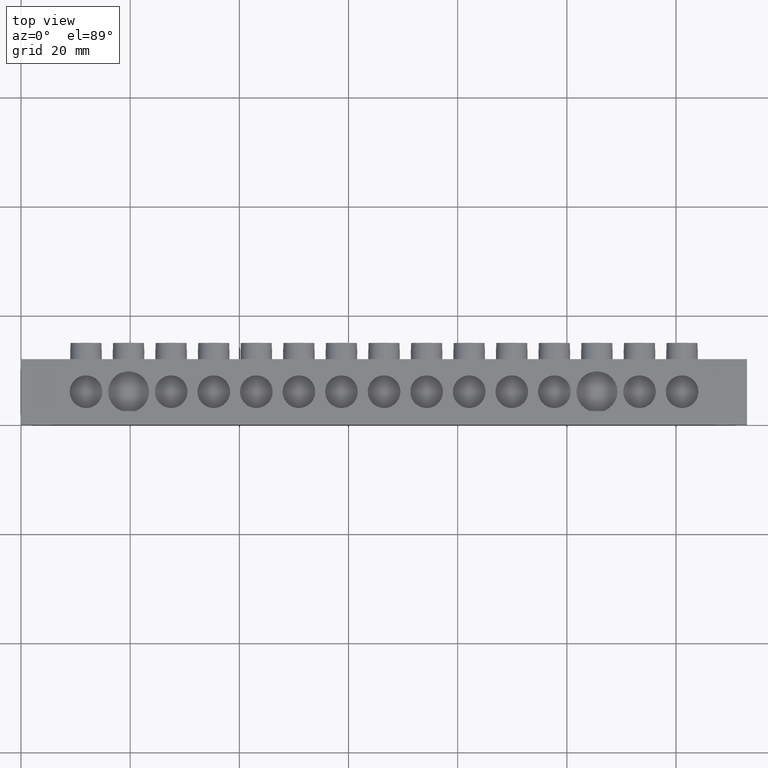
[diagram: clean part render]
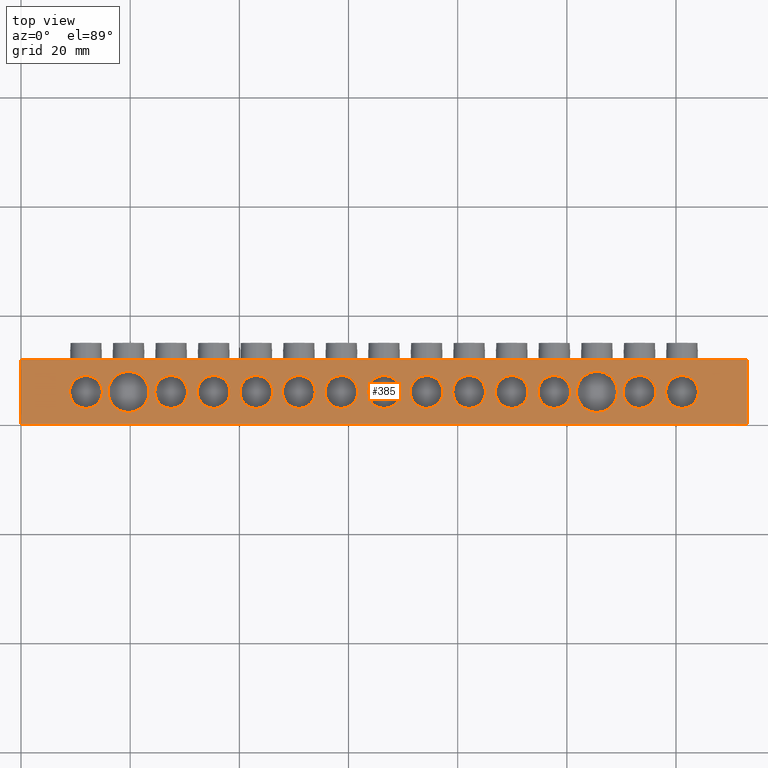
[diagram: same view with one face highlighted and labeled with its STEP entity id]
A machine part, top view. The second image highlights one B-rep face of the part: STEP entity #385.
In plain terms, the highlighted planar face has unit normal (0, 0, -1).
Its self-contained STEP definition (entity closure, byte-faithful):
#1 = DIRECTION ( 'NONE',  ( 0.0000000000000000000, 0.0000000000000000000, 1.000000000000000000 ) ) ;
#2 = DIRECTION ( 'NONE',  ( 1.000000000000000000, 0.0000000000000000000, 0.0000000000000000000 ) ) ;
#3 = DIRECTION ( 'NONE',  ( 0.0000000000000000000, 0.0000000000000000000, 1.000000000000000000 ) ) ;
#7 = DIRECTION ( 'NONE',  ( 1.000000000000000000, 0.0000000000000000000, 0.0000000000000000000 ) ) ;
#8 = CARTESIAN_POINT ( 'NONE',  ( 113.3000000000000100, 5.999999999999944900, 6.500000000000000000 ) ) ;
#9 = DIRECTION ( 'NONE',  ( 1.000000000000000000, 0.0000000000000000000, 0.0000000000000000000 ) ) ;
#143 = EDGE_CURVE ( 'NONE', #5442, #5523, #8555, .T. ) ;
#149 = EDGE_CURVE ( 'NONE', #5508, #5432, #8526, .T. ) ;
#171 = EDGE_CURVE ( 'NONE', #5478, #5435, #1101, .T. ) ;
#385 = ADVANCED_FACE ( 'NONE', ( #7093, #7083, #7107, #7117, #7109, #7098, #7104, #7108, #7101, #7081, #7110, #7111, #7115, #7120, #7122, #7155 ), #7154, .F. ) ;
#1101 = CIRCLE ( 'NONE', #1103, 3.000000000000009800 ) ;
#1103 = AXIS2_PLACEMENT_3D ( 'NONE', #1850, #1839, #1838 ) ;
#1189 = EDGE_LOOP ( 'NONE', ( #4659, #4681 ) ) ;
#1191 = EDGE_LOOP ( 'NONE', ( #4675, #4672 ) ) ;
#1207 = EDGE_LOOP ( 'NONE', ( #4696, #4648 ) ) ;
#1212 = EDGE_LOOP ( 'NONE', ( #4702, #4700 ) ) ;
#1223 = EDGE_LOOP ( 'NONE', ( #4693, #4643 ) ) ;
#1225 = EDGE_LOOP ( 'NONE', ( #4679, #4640 ) ) ;
#1235 = EDGE_LOOP ( 'NONE', ( #4642, #4647 ) ) ;
#1238 = EDGE_LOOP ( 'NONE', ( #4670, #4660 ) ) ;
#1240 = EDGE_LOOP ( 'NONE', ( #4653, #4673 ) ) ;
#1256 = EDGE_LOOP ( 'NONE', ( #4649, #4669 ) ) ;
#1259 = EDGE_LOOP ( 'NONE', ( #4678, #4655 ) ) ;
#1261 = EDGE_LOOP ( 'NONE', ( #4683, #4695 ) ) ;
#1275 = EDGE_LOOP ( 'NONE', ( #4646, #4620 ) ) ;
#1282 = EDGE_LOOP ( 'NONE', ( #4691, #4682, #4652, #4677 ) ) ;
#1283 = EDGE_LOOP ( 'NONE', ( #4624, #4625 ) ) ;
#1309 = EDGE_LOOP ( 'NONE', ( #4687, #4698 ) ) ;
#1540 = VERTEX_POINT ( 'NONE', #9136 ) ;
#1558 = VERTEX_POINT ( 'NONE', #9125 ) ;
#1566 = VERTEX_POINT ( 'NONE', #9166 ) ;
#1568 = VERTEX_POINT ( 'NONE', #9117 ) ;
#1571 = VERTEX_POINT ( 'NONE', #9133 ) ;
#1576 = VERTEX_POINT ( 'NONE', #9156 ) ;
#1604 = VERTEX_POINT ( 'NONE', #9114 ) ;
#1621 = VERTEX_POINT ( 'NONE', #9164 ) ;
#1623 = VERTEX_POINT ( 'NONE', #9216 ) ;
#1636 = VERTEX_POINT ( 'NONE', #9174 ) ;
#1686 = VERTEX_POINT ( 'NONE', #9214 ) ;
#1688 = VERTEX_POINT ( 'NONE', #9215 ) ;
#1699 = VERTEX_POINT ( 'NONE', #9220 ) ;
#1750 = DIRECTION ( 'NONE',  ( 0.0000000000000000000, 0.0000000000000000000, 1.000000000000000000 ) ) ;
#1756 = CARTESIAN_POINT ( 'NONE',  ( 43.10000000000001600, 5.999999999999841000, 6.500000000000000000 ) ) ;
#1759 = DIRECTION ( 'NONE',  ( 1.000000000000000000, 0.0000000000000000000, 0.0000000000000000000 ) ) ;
#1772 = CARTESIAN_POINT ( 'NONE',  ( 27.50000000000001100, 5.999999999999804600, 6.500000000000000000 ) ) ;
#1773 = DIRECTION ( 'NONE',  ( 1.000000000000000000, 0.0000000000000000000, 0.0000000000000000000 ) ) ;
#1781 = DIRECTION ( 'NONE',  ( 0.0000000000000000000, 0.0000000000000000000, 1.000000000000000000 ) ) ;
#1838 = DIRECTION ( 'NONE',  ( 1.000000000000000000, 0.0000000000000000000, 0.0000000000000000000 ) ) ;
#1839 = DIRECTION ( 'NONE',  ( 0.0000000000000000000, 0.0000000000000000000, 1.000000000000000000 ) ) ;
#1850 = CARTESIAN_POINT ( 'NONE',  ( 35.30000000000001100, 5.999999999999823300, 6.500000000000000000 ) ) ;
#2083 = AXIS2_PLACEMENT_3D ( 'NONE', #7126, #7143, #7131 ) ;
#2981 = CARTESIAN_POINT ( 'NONE',  ( 85.10000000000000900, 5.999999999999929800, 6.500000000000000000 ) ) ;
#2986 = CARTESIAN_POINT ( 'NONE',  ( 63.50000000000000000, 5.999999999999894300, 6.500000000000000000 ) ) ;
#2989 = CARTESIAN_POINT ( 'NONE',  ( 77.30000000000001100, 5.999999999999913000, 6.500000000000000000 ) ) ;
#2992 = CARTESIAN_POINT ( 'NONE',  ( 100.7000000000000200, 5.999999999999949400, 6.500000000000000000 ) ) ;
#3010 = CARTESIAN_POINT ( 'NONE',  ( 86.90000000000000600, 5.999999999999948500, 6.500000000000000000 ) ) ;
#3016 = CARTESIAN_POINT ( 'NONE',  ( 71.29999999999999700, 5.999999999999913000, 6.500000000000000000 ) ) ;
#3021 = CARTESIAN_POINT ( 'NONE',  ( 69.50000000000000000, 5.999999999999894300, 6.500000000000000000 ) ) ;
#3022 = CARTESIAN_POINT ( 'NONE',  ( 94.70000000000000300, 5.999999999999949400, 6.500000000000000000 ) ) ;
#3040 = CARTESIAN_POINT ( 'NONE',  ( 79.10000000000000900, 5.999999999999929800, 6.500000000000000000 ) ) ;
#3043 = CARTESIAN_POINT ( 'NONE',  ( 92.90000000000000600, 5.999999999999948500, 6.500000000000000000 ) ) ;
#3064 = CARTESIAN_POINT ( 'NONE',  ( 109.2500000000000100, 5.999999999999949400, 6.500000000000000000 ) ) ;
#3696 = CARTESIAN_POINT ( 'NONE',  ( 101.7500000000000000, 5.999999999999950300, 6.500000000000000000 ) ) ;
#3704 = CARTESIAN_POINT ( 'NONE',  ( 24.50000000000000000, 5.999999999999804600, 6.500000000000000000 ) ) ;
#3705 = CARTESIAN_POINT ( 'NONE',  ( 46.10000000000002300, 5.999999999999841000, 6.500000000000000000 ) ) ;
#3713 = CARTESIAN_POINT ( 'NONE',  ( 47.89999999999999900, 5.999999999999858800, 6.500000000000000000 ) ) ;
#3717 = CARTESIAN_POINT ( 'NONE',  ( 32.30000000000000400, 5.999999999999823300, 6.500000000000000000 ) ) ;
#3718 = CARTESIAN_POINT ( 'NONE',  ( 53.90000000000002000, 5.999999999999858800, 6.500000000000000000 ) ) ;
#3720 = CARTESIAN_POINT ( 'NONE',  ( 61.70000000000001700, 5.999999999999876500, 6.500000000000000000 ) ) ;
#3789 = CARTESIAN_POINT ( 'NONE',  ( 82.10000000000000900, 5.999999999999929800, 6.500000000000000000 ) ) ;
#3887 = DIRECTION ( 'NONE',  ( 0.0000000000000000000, 0.0000000000000000000, 1.000000000000000000 ) ) ;
#3943 = DIRECTION ( 'NONE',  ( 1.000000000000000000, 0.0000000000000000000, 0.0000000000000000000 ) ) ;
#4095 = CARTESIAN_POINT ( 'NONE',  ( 38.30000000000001800, 5.999999999999823300, 6.500000000000000000 ) ) ;
#4115 = CARTESIAN_POINT ( 'NONE',  ( 30.50000000000002100, 5.999999999999804600, 6.500000000000000000 ) ) ;
#4124 = CARTESIAN_POINT ( 'NONE',  ( 40.10000000000000100, 5.999999999999841000, 6.500000000000000000 ) ) ;
#4130 = EDGE_CURVE ( 'NONE', #5490, #5446, #6539, .T. ) ;
#4131 = EDGE_CURVE ( 'NONE', #1568, #1566, #6519, .T. ) ;
#4139 = EDGE_CURVE ( 'NONE', #1699, #1688, #9238, .T. ) ;
#4140 = EDGE_CURVE ( 'NONE', #5515, #1636, #6540, .T. ) ;
#4144 = EDGE_CURVE ( 'NONE', #1540, #1623, #6501, .T. ) ;
#4153 = EDGE_CURVE ( 'NONE', #1576, #1558, #6528, .T. ) ;
#4154 = EDGE_CURVE ( 'NONE', #1686, #1604, #9269, .T. ) ;
#4156 = EDGE_CURVE ( 'NONE', #5523, #5442, #6505, .T. ) ;
#4173 = EDGE_CURVE ( 'NONE', #5435, #5478, #6588, .T. ) ;
#4174 = EDGE_CURVE ( 'NONE', #9455, #9454, #6567, .T. ) ;
#4176 = EDGE_CURVE ( 'NONE', #5432, #5508, #6585, .T. ) ;
#4177 = EDGE_CURVE ( 'NONE', #9442, #9452, #6575, .T. ) ;
#4178 = EDGE_CURVE ( 'NONE', #1688, #1686, #9347, .T. ) ;
#4179 = EDGE_CURVE ( 'NONE', #9487, #5503, #6591, .T. ) ;
#4182 = EDGE_CURVE ( 'NONE', #9439, #9450, #6581, .T. ) ;
#4189 = EDGE_CURVE ( 'NONE', #1604, #1699, #8507, .T. ) ;
#4190 = EDGE_CURVE ( 'NONE', #1621, #1571, #6606, .T. ) ;
#4194 = EDGE_CURVE ( 'NONE', #9444, #9449, #6619, .T. ) ;
#4198 = EDGE_CURVE ( 'NONE', #9453, #9467, #6630, .T. ) ;
#4620 = ORIENTED_EDGE ( 'NONE', *, *, #5917, .F. ) ;
#4624 = ORIENTED_EDGE ( 'NONE', *, *, #4140, .F. ) ;
#4625 = ORIENTED_EDGE ( 'NONE', *, *, #5979, .F. ) ;
#4640 = ORIENTED_EDGE ( 'NONE', *, *, #5976, .F. ) ;
#4642 = ORIENTED_EDGE ( 'NONE', *, *, #4198, .F. ) ;
#4643 = ORIENTED_EDGE ( 'NONE', *, *, #5980, .F. ) ;
#4646 = ORIENTED_EDGE ( 'NONE', *, *, #4130, .F. ) ;
#4647 = ORIENTED_EDGE ( 'NONE', *, *, #5939, .F. ) ;
#4648 = ORIENTED_EDGE ( 'NONE', *, *, #5934, .F. ) ;
#4649 = ORIENTED_EDGE ( 'NONE', *, *, #4173, .F. ) ;
#4652 = ORIENTED_EDGE ( 'NONE', *, *, #4139, .T. ) ;
#4653 = ORIENTED_EDGE ( 'NONE', *, *, #4179, .F. ) ;
#4655 = ORIENTED_EDGE ( 'NONE', *, *, #5952, .F. ) ;
#4659 = ORIENTED_EDGE ( 'NONE', *, *, #4131, .F. ) ;
#4660 = ORIENTED_EDGE ( 'NONE', *, *, #143, .F. ) ;
#4669 = ORIENTED_EDGE ( 'NONE', *, *, #171, .F. ) ;
#4670 = ORIENTED_EDGE ( 'NONE', *, *, #4156, .F. ) ;
#4672 = ORIENTED_EDGE ( 'NONE', *, *, #149, .F. ) ;
#4673 = ORIENTED_EDGE ( 'NONE', *, *, #5962, .F. ) ;
#4675 = ORIENTED_EDGE ( 'NONE', *, *, #4176, .F. ) ;
#4677 = ORIENTED_EDGE ( 'NONE', *, *, #4178, .T. ) ;
#4678 = ORIENTED_EDGE ( 'NONE', *, *, #4174, .F. ) ;
#4679 = ORIENTED_EDGE ( 'NONE', *, *, #4153, .F. ) ;
#4681 = ORIENTED_EDGE ( 'NONE', *, *, #5958, .F. ) ;
#4682 = ORIENTED_EDGE ( 'NONE', *, *, #4189, .T. ) ;
#4683 = ORIENTED_EDGE ( 'NONE', *, *, #4190, .F. ) ;
#4687 = ORIENTED_EDGE ( 'NONE', *, *, #4177, .F. ) ;
#4691 = ORIENTED_EDGE ( 'NONE', *, *, #4154, .T. ) ;
#4693 = ORIENTED_EDGE ( 'NONE', *, *, #4194, .F. ) ;
#4695 = ORIENTED_EDGE ( 'NONE', *, *, #5978, .F. ) ;
#4696 = ORIENTED_EDGE ( 'NONE', *, *, #4144, .F. ) ;
#4698 = ORIENTED_EDGE ( 'NONE', *, *, #5963, .F. ) ;
#4700 = ORIENTED_EDGE ( 'NONE', *, *, #5876, .F. ) ;
#4702 = ORIENTED_EDGE ( 'NONE', *, *, #4182, .F. ) ;
#5432 = VERTEX_POINT ( 'NONE', #4115 ) ;
#5435 = VERTEX_POINT ( 'NONE', #4095 ) ;
#5442 = VERTEX_POINT ( 'NONE', #4124 ) ;
#5446 = VERTEX_POINT ( 'NONE', #3713 ) ;
#5478 = VERTEX_POINT ( 'NONE', #3717 ) ;
#5490 = VERTEX_POINT ( 'NONE', #3718 ) ;
#5503 = VERTEX_POINT ( 'NONE', #3696 ) ;
#5508 = VERTEX_POINT ( 'NONE', #3704 ) ;
#5515 = VERTEX_POINT ( 'NONE', #3720 ) ;
#5523 = VERTEX_POINT ( 'NONE', #3705 ) ;
#5876 = EDGE_CURVE ( 'NONE', #9450, #9439, #6844, .T. ) ;
#5917 = EDGE_CURVE ( 'NONE', #5446, #5490, #6326, .T. ) ;
#5934 = EDGE_CURVE ( 'NONE', #1623, #1540, #6368, .T. ) ;
#5939 = EDGE_CURVE ( 'NONE', #9467, #9453, #6319, .T. ) ;
#5952 = EDGE_CURVE ( 'NONE', #9454, #9455, #6377, .T. ) ;
#5958 = EDGE_CURVE ( 'NONE', #1566, #1568, #6374, .T. ) ;
#5962 = EDGE_CURVE ( 'NONE', #5503, #9487, #6389, .T. ) ;
#5963 = EDGE_CURVE ( 'NONE', #9452, #9442, #6388, .T. ) ;
#5976 = EDGE_CURVE ( 'NONE', #1558, #1576, #6382, .T. ) ;
#5978 = EDGE_CURVE ( 'NONE', #1571, #1621, #6437, .T. ) ;
#5979 = EDGE_CURVE ( 'NONE', #1636, #5515, #6402, .T. ) ;
#5980 = EDGE_CURVE ( 'NONE', #9449, #9444, #6383, .T. ) ;
#6319 = CIRCLE ( 'NONE', #6360, 3.000000000000002700 ) ;
#6326 = CIRCLE ( 'NONE', #6356, 3.000000000000009800 ) ;
#6328 = AXIS2_PLACEMENT_3D ( 'NONE', #9878, #9877, #9880 ) ;
#6350 = AXIS2_PLACEMENT_3D ( 'NONE', #9870, #9855, #9860 ) ;
#6353 = AXIS2_PLACEMENT_3D ( 'NONE', #9782, #9785, #9778 ) ;
#6356 = AXIS2_PLACEMENT_3D ( 'NONE', #9704, #9717, #9705 ) ;
#6360 = AXIS2_PLACEMENT_3D ( 'NONE', #9826, #9814, #9817 ) ;
#6368 = CIRCLE ( 'NONE', #6353, 3.750000000000000000 ) ;
#6374 = CIRCLE ( 'NONE', #6328, 2.999999999999999100 ) ;
#6377 = CIRCLE ( 'NONE', #6350, 3.000000000000002700 ) ;
#6382 = CIRCLE ( 'NONE', #6417, 3.000000000000002700 ) ;
#6383 = CIRCLE ( 'NONE', #6386, 3.000000000000002700 ) ;
#6386 = AXIS2_PLACEMENT_3D ( 'NONE', #10036, #3, #7 ) ;
#6388 = CIRCLE ( 'NONE', #6418, 3.000000000000002700 ) ;
#6389 = CIRCLE ( 'NONE', #6436, 3.750000000000003600 ) ;
#6397 = AXIS2_PLACEMENT_3D ( 'NONE', #10023, #10043, #10044 ) ;
#6402 = CIRCLE ( 'NONE', #6434, 3.000000000000009800 ) ;
#6417 = AXIS2_PLACEMENT_3D ( 'NONE', #8, #10022, #9 ) ;
#6418 = AXIS2_PLACEMENT_3D ( 'NONE', #9905, #9891, #9884 ) ;
#6434 = AXIS2_PLACEMENT_3D ( 'NONE', #10037, #1, #2 ) ;
#6436 = AXIS2_PLACEMENT_3D ( 'NONE', #9889, #9896, #9890 ) ;
#6437 = CIRCLE ( 'NONE', #6397, 3.000000000000002700 ) ;
#6501 = CIRCLE ( 'NONE', #6543, 3.750000000000000000 ) ;
#6505 = CIRCLE ( 'NONE', #6507, 3.000000000000009800 ) ;
#6507 = AXIS2_PLACEMENT_3D ( 'NONE', #9323, #9317, #9342 ) ;
#6512 = VECTOR ( 'NONE', #9312, 1000.000000000000000 ) ;
#6519 = CIRCLE ( 'NONE', #6544, 2.999999999999999100 ) ;
#6528 = CIRCLE ( 'NONE', #6534, 3.000000000000002700 ) ;
#6534 = AXIS2_PLACEMENT_3D ( 'NONE', #9310, #9333, #9326 ) ;
#6538 = AXIS2_PLACEMENT_3D ( 'NONE', #9235, #9280, #9284 ) ;
#6539 = CIRCLE ( 'NONE', #6553, 3.000000000000009800 ) ;
#6540 = CIRCLE ( 'NONE', #6538, 3.000000000000009800 ) ;
#6543 = AXIS2_PLACEMENT_3D ( 'NONE', #9278, #9274, #9289 ) ;
#6544 = AXIS2_PLACEMENT_3D ( 'NONE', #9264, #9241, #9230 ) ;
#6547 = VECTOR ( 'NONE', #9255, 1000.000000000000000 ) ;
#6553 = AXIS2_PLACEMENT_3D ( 'NONE', #9248, #9236, #9267 ) ;
#6565 = AXIS2_PLACEMENT_3D ( 'NONE', #9377, #9376, #9382 ) ;
#6567 = CIRCLE ( 'NONE', #6624, 3.000000000000002700 ) ;
#6569 = AXIS2_PLACEMENT_3D ( 'NONE', #9371, #9349, #9384 ) ;
#6573 = AXIS2_PLACEMENT_3D ( 'NONE', #7998, #8019, #7985 ) ;
#6575 = CIRCLE ( 'NONE', #6602, 3.000000000000002700 ) ;
#6581 = CIRCLE ( 'NONE', #6594, 3.000000000000002700 ) ;
#6585 = CIRCLE ( 'NONE', #6569, 3.000000000000009800 ) ;
#6588 = CIRCLE ( 'NONE', #6565, 3.000000000000009800 ) ;
#6590 = AXIS2_PLACEMENT_3D ( 'NONE', #8891, #8944, #8970 ) ;
#6591 = CIRCLE ( 'NONE', #6590, 3.750000000000003600 ) ;
#6594 = AXIS2_PLACEMENT_3D ( 'NONE', #8486, #8493, #8500 ) ;
#6602 = AXIS2_PLACEMENT_3D ( 'NONE', #9351, #9361, #9352 ) ;
#6606 = CIRCLE ( 'NONE', #6613, 3.000000000000002700 ) ;
#6607 = VECTOR ( 'NONE', #7997, 1000.000000000000000 ) ;
#6613 = AXIS2_PLACEMENT_3D ( 'NONE', #7996, #8000, #8007 ) ;
#6616 = VECTOR ( 'NONE', #9360, 1000.000000000000000 ) ;
#6619 = CIRCLE ( 'NONE', #6573, 3.000000000000002700 ) ;
#6624 = AXIS2_PLACEMENT_3D ( 'NONE', #9378, #9365, #9366 ) ;
#6630 = CIRCLE ( 'NONE', #6667, 3.000000000000002700 ) ;
#6667 = AXIS2_PLACEMENT_3D ( 'NONE', #7993, #7999, #8002 ) ;
#6844 = CIRCLE ( 'NONE', #6857, 3.000000000000002700 ) ;
#6857 = AXIS2_PLACEMENT_3D ( 'NONE', #3789, #3887, #3943 ) ;
#7081 = FACE_BOUND ( 'NONE', #1259, .T. ) ;
#7083 = FACE_BOUND ( 'NONE', #1256, .T. ) ;
#7093 = FACE_BOUND ( 'NONE', #1191, .T. ) ;
#7098 = FACE_BOUND ( 'NONE', #1235, .T. ) ;
#7101 = FACE_BOUND ( 'NONE', #1309, .T. ) ;
#7104 = FACE_BOUND ( 'NONE', #1223, .T. ) ;
#7107 = FACE_BOUND ( 'NONE', #1238, .T. ) ;
#7108 = FACE_BOUND ( 'NONE', #1212, .T. ) ;
#7109 = FACE_BOUND ( 'NONE', #1283, .T. ) ;
#7110 = FACE_BOUND ( 'NONE', #1240, .T. ) ;
#7111 = FACE_BOUND ( 'NONE', #1225, .T. ) ;
#7115 = FACE_BOUND ( 'NONE', #1261, .T. ) ;
#7117 = FACE_BOUND ( 'NONE', #1275, .T. ) ;
#7120 = FACE_BOUND ( 'NONE', #1207, .T. ) ;
#7122 = FACE_BOUND ( 'NONE', #1189, .T. ) ;
#7126 = CARTESIAN_POINT ( 'NONE',  ( 0.0000000000000000000, 12.00000000000000000, 6.500000000000000000 ) ) ;
#7131 = DIRECTION ( 'NONE',  ( -1.000000000000000000, 0.0000000000000000000, -0.0000000000000000000 ) ) ;
#7143 = DIRECTION ( 'NONE',  ( 0.0000000000000000000, 0.0000000000000000000, -1.000000000000000000 ) ) ;
#7154 = PLANE ( 'NONE',  #2083 ) ;
#7155 = FACE_OUTER_BOUND ( 'NONE', #1282, .T. ) ;
#7985 = DIRECTION ( 'NONE',  ( 1.000000000000000000, 0.0000000000000000000, 0.0000000000000000000 ) ) ;
#7993 = CARTESIAN_POINT ( 'NONE',  ( 66.50000000000000000, 5.999999999999894300, 6.500000000000000000 ) ) ;
#7996 = CARTESIAN_POINT ( 'NONE',  ( 121.1000000000000100, 5.999999999999999100, 6.500000000000000000 ) ) ;
#7997 = DIRECTION ( 'NONE',  ( 1.000000000000000000, 0.0000000000000000000, 0.0000000000000000000 ) ) ;
#7998 = CARTESIAN_POINT ( 'NONE',  ( 74.30000000000001100, 5.999999999999913000, 6.500000000000000000 ) ) ;
#7999 = DIRECTION ( 'NONE',  ( 0.0000000000000000000, 0.0000000000000000000, 1.000000000000000000 ) ) ;
#8000 = DIRECTION ( 'NONE',  ( 0.0000000000000000000, 0.0000000000000000000, 1.000000000000000000 ) ) ;
#8002 = DIRECTION ( 'NONE',  ( 1.000000000000000000, 0.0000000000000000000, 0.0000000000000000000 ) ) ;
#8007 = DIRECTION ( 'NONE',  ( 1.000000000000000000, 0.0000000000000000000, 0.0000000000000000000 ) ) ;
#8019 = DIRECTION ( 'NONE',  ( 0.0000000000000000000, 0.0000000000000000000, 1.000000000000000000 ) ) ;
#8486 = CARTESIAN_POINT ( 'NONE',  ( 82.10000000000000900, 5.999999999999929800, 6.500000000000000000 ) ) ;
#8493 = DIRECTION ( 'NONE',  ( 0.0000000000000000000, 0.0000000000000000000, 1.000000000000000000 ) ) ;
#8500 = DIRECTION ( 'NONE',  ( 1.000000000000000000, 0.0000000000000000000, 0.0000000000000000000 ) ) ;
#8507 = LINE ( 'NONE', #8509, #6607 ) ;
#8509 = CARTESIAN_POINT ( 'NONE',  ( 0.0000000000000000000, 0.0000000000000000000, 6.500000000000000000 ) ) ;
#8522 = AXIS2_PLACEMENT_3D ( 'NONE', #1772, #1750, #1773 ) ;
#8526 = CIRCLE ( 'NONE', #8522, 3.000000000000009800 ) ;
#8555 = CIRCLE ( 'NONE', #8557, 3.000000000000009800 ) ;
#8557 = AXIS2_PLACEMENT_3D ( 'NONE', #1756, #1781, #1759 ) ;
#8891 = CARTESIAN_POINT ( 'NONE',  ( 105.5000000000000100, 5.999999999999949400, 6.500000000000000000 ) ) ;
#8944 = DIRECTION ( 'NONE',  ( 0.0000000000000000000, 0.0000000000000000000, 1.000000000000000000 ) ) ;
#8970 = DIRECTION ( 'NONE',  ( 1.000000000000000000, 0.0000000000000000000, 0.0000000000000000000 ) ) ;
#9114 = CARTESIAN_POINT ( 'NONE',  ( 0.0000000000000000000, 0.0000000000000000000, 6.500000000000000000 ) ) ;
#9117 = CARTESIAN_POINT ( 'NONE',  ( 14.90000000000000000, 6.000000000000000000, 6.500000000000000000 ) ) ;
#9125 = CARTESIAN_POINT ( 'NONE',  ( 110.3000000000000100, 5.999999999999944900, 6.500000000000000000 ) ) ;
#9133 = CARTESIAN_POINT ( 'NONE',  ( 118.1000000000000100, 5.999999999999999100, 6.500000000000000000 ) ) ;
#9136 = CARTESIAN_POINT ( 'NONE',  ( 23.45000000000000300, 6.000000000000000000, 6.500000000000000000 ) ) ;
#9156 = CARTESIAN_POINT ( 'NONE',  ( 116.3000000000000100, 5.999999999999944900, 6.500000000000000000 ) ) ;
#9164 = CARTESIAN_POINT ( 'NONE',  ( 124.1000000000000200, 5.999999999999999100, 6.500000000000000000 ) ) ;
#9166 = CARTESIAN_POINT ( 'NONE',  ( 8.900000000000002100, 6.000000000000000000, 6.500000000000000000 ) ) ;
#9174 = CARTESIAN_POINT ( 'NONE',  ( 55.70000000000000300, 5.999999999999876500, 6.500000000000000000 ) ) ;
#9214 = CARTESIAN_POINT ( 'NONE',  ( 0.0000000000000000000, 12.00000000000000000, 6.500000000000000000 ) ) ;
#9215 = CARTESIAN_POINT ( 'NONE',  ( 133.0000000000000000, 12.00000000000000000, 6.500000000000000000 ) ) ;
#9216 = CARTESIAN_POINT ( 'NONE',  ( 15.95000000000000300, 6.000000000000000900, 6.500000000000000000 ) ) ;
#9220 = CARTESIAN_POINT ( 'NONE',  ( 133.0000000000000000, 0.0000000000000000000, 6.500000000000000000 ) ) ;
#9230 = DIRECTION ( 'NONE',  ( 1.000000000000000000, 0.0000000000000000000, 0.0000000000000000000 ) ) ;
#9235 = CARTESIAN_POINT ( 'NONE',  ( 58.70000000000001000, 5.999999999999876500, 6.500000000000000000 ) ) ;
#9236 = DIRECTION ( 'NONE',  ( 0.0000000000000000000, 0.0000000000000000000, 1.000000000000000000 ) ) ;
#9238 = LINE ( 'NONE', #9263, #6547 ) ;
#9241 = DIRECTION ( 'NONE',  ( 0.0000000000000000000, 0.0000000000000000000, 1.000000000000000000 ) ) ;
#9248 = CARTESIAN_POINT ( 'NONE',  ( 50.90000000000000600, 5.999999999999858800, 6.500000000000000000 ) ) ;
#9255 = DIRECTION ( 'NONE',  ( 0.0000000000000000000, 1.000000000000000000, 0.0000000000000000000 ) ) ;
#9263 = CARTESIAN_POINT ( 'NONE',  ( 133.0000000000000000, 0.0000000000000000000, 6.500000000000000000 ) ) ;
#9264 = CARTESIAN_POINT ( 'NONE',  ( 11.90000000000000000, 6.000000000000000000, 6.500000000000000000 ) ) ;
#9267 = DIRECTION ( 'NONE',  ( 1.000000000000000000, 0.0000000000000000000, 0.0000000000000000000 ) ) ;
#9269 = LINE ( 'NONE', #9272, #6512 ) ;
#9272 = CARTESIAN_POINT ( 'NONE',  ( 0.0000000000000000000, 0.0000000000000000000, 6.500000000000000000 ) ) ;
#9274 = DIRECTION ( 'NONE',  ( 0.0000000000000000000, 0.0000000000000000000, 1.000000000000000000 ) ) ;
#9278 = CARTESIAN_POINT ( 'NONE',  ( 19.70000000000000300, 6.000000000000000000, 6.500000000000000000 ) ) ;
#9280 = DIRECTION ( 'NONE',  ( 0.0000000000000000000, 0.0000000000000000000, 1.000000000000000000 ) ) ;
#9284 = DIRECTION ( 'NONE',  ( 1.000000000000000000, 0.0000000000000000000, 0.0000000000000000000 ) ) ;
#9289 = DIRECTION ( 'NONE',  ( 1.000000000000000000, 0.0000000000000000000, 0.0000000000000000000 ) ) ;
#9310 = CARTESIAN_POINT ( 'NONE',  ( 113.3000000000000100, 5.999999999999944900, 6.500000000000000000 ) ) ;
#9312 = DIRECTION ( 'NONE',  ( -0.0000000000000000000, -1.000000000000000000, -0.0000000000000000000 ) ) ;
#9317 = DIRECTION ( 'NONE',  ( 0.0000000000000000000, 0.0000000000000000000, 1.000000000000000000 ) ) ;
#9323 = CARTESIAN_POINT ( 'NONE',  ( 43.10000000000001600, 5.999999999999841000, 6.500000000000000000 ) ) ;
#9326 = DIRECTION ( 'NONE',  ( 1.000000000000000000, 0.0000000000000000000, 0.0000000000000000000 ) ) ;
#9333 = DIRECTION ( 'NONE',  ( 0.0000000000000000000, 0.0000000000000000000, 1.000000000000000000 ) ) ;
#9342 = DIRECTION ( 'NONE',  ( 1.000000000000000000, 0.0000000000000000000, 0.0000000000000000000 ) ) ;
#9347 = LINE ( 'NONE', #9358, #6616 ) ;
#9349 = DIRECTION ( 'NONE',  ( 0.0000000000000000000, 0.0000000000000000000, 1.000000000000000000 ) ) ;
#9351 = CARTESIAN_POINT ( 'NONE',  ( 89.90000000000000600, 5.999999999999948500, 6.500000000000000000 ) ) ;
#9352 = DIRECTION ( 'NONE',  ( 1.000000000000000000, 0.0000000000000000000, 0.0000000000000000000 ) ) ;
#9358 = CARTESIAN_POINT ( 'NONE',  ( 0.0000000000000000000, 12.00000000000000000, 6.500000000000000000 ) ) ;
#9360 = DIRECTION ( 'NONE',  ( -1.000000000000000000, -0.0000000000000000000, -0.0000000000000000000 ) ) ;
#9361 = DIRECTION ( 'NONE',  ( 0.0000000000000000000, 0.0000000000000000000, 1.000000000000000000 ) ) ;
#9365 = DIRECTION ( 'NONE',  ( 0.0000000000000000000, 0.0000000000000000000, 1.000000000000000000 ) ) ;
#9366 = DIRECTION ( 'NONE',  ( 1.000000000000000000, 0.0000000000000000000, 0.0000000000000000000 ) ) ;
#9371 = CARTESIAN_POINT ( 'NONE',  ( 27.50000000000001100, 5.999999999999804600, 6.500000000000000000 ) ) ;
#9376 = DIRECTION ( 'NONE',  ( 0.0000000000000000000, 0.0000000000000000000, 1.000000000000000000 ) ) ;
#9377 = CARTESIAN_POINT ( 'NONE',  ( 35.30000000000001100, 5.999999999999823300, 6.500000000000000000 ) ) ;
#9378 = CARTESIAN_POINT ( 'NONE',  ( 97.70000000000000300, 5.999999999999949400, 6.500000000000000000 ) ) ;
#9382 = DIRECTION ( 'NONE',  ( 1.000000000000000000, 0.0000000000000000000, 0.0000000000000000000 ) ) ;
#9384 = DIRECTION ( 'NONE',  ( 1.000000000000000000, 0.0000000000000000000, 0.0000000000000000000 ) ) ;
#9439 = VERTEX_POINT ( 'NONE', #2981 ) ;
#9442 = VERTEX_POINT ( 'NONE', #3043 ) ;
#9444 = VERTEX_POINT ( 'NONE', #2989 ) ;
#9449 = VERTEX_POINT ( 'NONE', #3016 ) ;
#9450 = VERTEX_POINT ( 'NONE', #3040 ) ;
#9452 = VERTEX_POINT ( 'NONE', #3010 ) ;
#9453 = VERTEX_POINT ( 'NONE', #3021 ) ;
#9454 = VERTEX_POINT ( 'NONE', #3022 ) ;
#9455 = VERTEX_POINT ( 'NONE', #2992 ) ;
#9467 = VERTEX_POINT ( 'NONE', #2986 ) ;
#9487 = VERTEX_POINT ( 'NONE', #3064 ) ;
#9704 = CARTESIAN_POINT ( 'NONE',  ( 50.90000000000000600, 5.999999999999858800, 6.500000000000000000 ) ) ;
#9705 = DIRECTION ( 'NONE',  ( 1.000000000000000000, 0.0000000000000000000, 0.0000000000000000000 ) ) ;
#9717 = DIRECTION ( 'NONE',  ( 0.0000000000000000000, 0.0000000000000000000, 1.000000000000000000 ) ) ;
#9778 = DIRECTION ( 'NONE',  ( 1.000000000000000000, 0.0000000000000000000, 0.0000000000000000000 ) ) ;
#9782 = CARTESIAN_POINT ( 'NONE',  ( 19.70000000000000300, 6.000000000000000000, 6.500000000000000000 ) ) ;
#9785 = DIRECTION ( 'NONE',  ( 0.0000000000000000000, 0.0000000000000000000, 1.000000000000000000 ) ) ;
#9814 = DIRECTION ( 'NONE',  ( 0.0000000000000000000, 0.0000000000000000000, 1.000000000000000000 ) ) ;
#9817 = DIRECTION ( 'NONE',  ( 1.000000000000000000, 0.0000000000000000000, 0.0000000000000000000 ) ) ;
#9826 = CARTESIAN_POINT ( 'NONE',  ( 66.50000000000000000, 5.999999999999894300, 6.500000000000000000 ) ) ;
#9855 = DIRECTION ( 'NONE',  ( 0.0000000000000000000, 0.0000000000000000000, 1.000000000000000000 ) ) ;
#9860 = DIRECTION ( 'NONE',  ( 1.000000000000000000, 0.0000000000000000000, 0.0000000000000000000 ) ) ;
#9870 = CARTESIAN_POINT ( 'NONE',  ( 97.70000000000000300, 5.999999999999949400, 6.500000000000000000 ) ) ;
#9877 = DIRECTION ( 'NONE',  ( 0.0000000000000000000, 0.0000000000000000000, 1.000000000000000000 ) ) ;
#9878 = CARTESIAN_POINT ( 'NONE',  ( 11.90000000000000000, 6.000000000000000000, 6.500000000000000000 ) ) ;
#9880 = DIRECTION ( 'NONE',  ( 1.000000000000000000, 0.0000000000000000000, 0.0000000000000000000 ) ) ;
#9884 = DIRECTION ( 'NONE',  ( 1.000000000000000000, 0.0000000000000000000, 0.0000000000000000000 ) ) ;
#9889 = CARTESIAN_POINT ( 'NONE',  ( 105.5000000000000100, 5.999999999999949400, 6.500000000000000000 ) ) ;
#9890 = DIRECTION ( 'NONE',  ( 1.000000000000000000, 0.0000000000000000000, 0.0000000000000000000 ) ) ;
#9891 = DIRECTION ( 'NONE',  ( 0.0000000000000000000, 0.0000000000000000000, 1.000000000000000000 ) ) ;
#9896 = DIRECTION ( 'NONE',  ( 0.0000000000000000000, 0.0000000000000000000, 1.000000000000000000 ) ) ;
#9905 = CARTESIAN_POINT ( 'NONE',  ( 89.90000000000000600, 5.999999999999948500, 6.500000000000000000 ) ) ;
#10022 = DIRECTION ( 'NONE',  ( 0.0000000000000000000, 0.0000000000000000000, 1.000000000000000000 ) ) ;
#10023 = CARTESIAN_POINT ( 'NONE',  ( 121.1000000000000100, 5.999999999999999100, 6.500000000000000000 ) ) ;
#10036 = CARTESIAN_POINT ( 'NONE',  ( 74.30000000000001100, 5.999999999999913000, 6.500000000000000000 ) ) ;
#10037 = CARTESIAN_POINT ( 'NONE',  ( 58.70000000000001000, 5.999999999999876500, 6.500000000000000000 ) ) ;
#10043 = DIRECTION ( 'NONE',  ( 0.0000000000000000000, 0.0000000000000000000, 1.000000000000000000 ) ) ;
#10044 = DIRECTION ( 'NONE',  ( 1.000000000000000000, 0.0000000000000000000, 0.0000000000000000000 ) ) ;